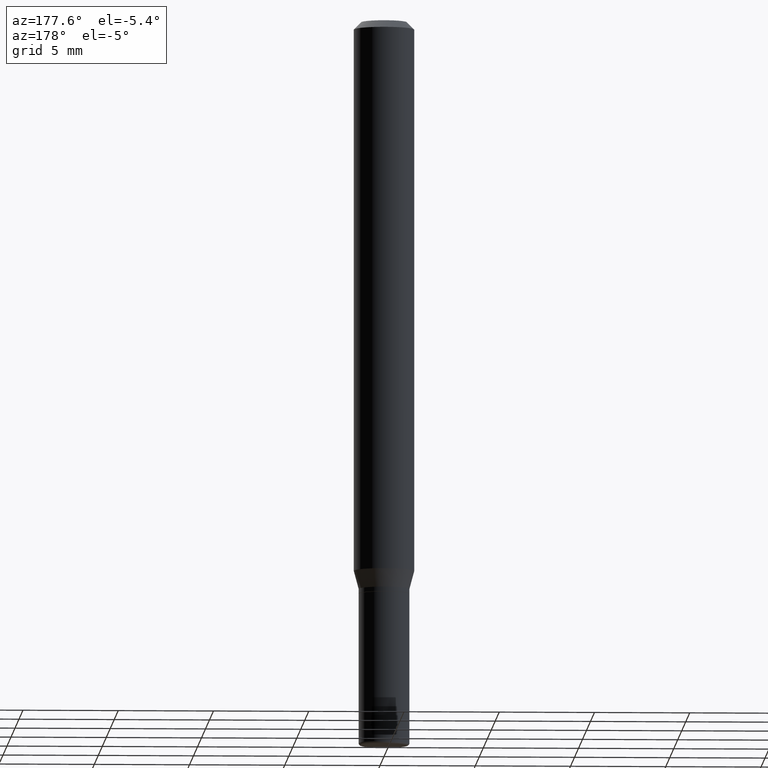
[diagram: clean part render]
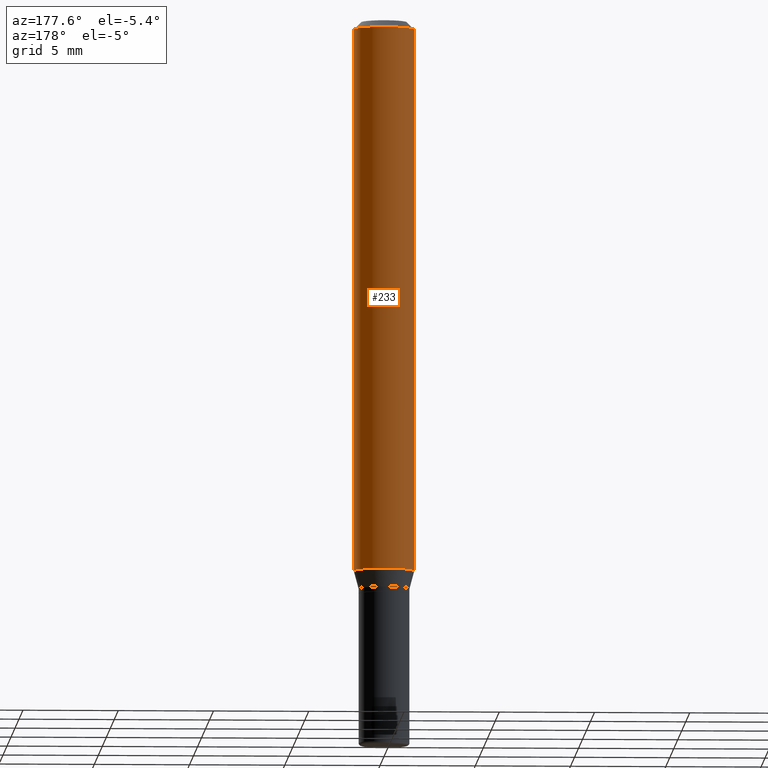
[diagram: same view with one face highlighted and labeled with its STEP entity id]
A machine part, auxiliary view. The second image highlights one B-rep face of the part: STEP entity #233.
In plain terms, the highlighted cylindrical surface (edge-blend (fillet) strip) has radius 1.5875 mm, axis along (-0, 0, 1).
Its self-contained STEP definition (entity closure, byte-faithful):
#3 = VERTEX_POINT ( 'NONE', #241 ) ;
#12 = DIRECTION ( 'NONE',  ( 1.000000000000000000, -6.982962677686266711E-15, 0.000000000000000000 ) ) ;
#13 = ORIENTED_EDGE ( 'NONE', *, *, #512, .T. ) ;
#26 = FACE_OUTER_BOUND ( 'NONE', #471, .T. ) ;
#31 = CIRCLE ( 'NONE', #235, 0.06250000000000000000 ) ;
#36 = CARTESIAN_POINT ( 'NONE',  ( 0.06250000000000000000, -4.364351673553916694E-16, 3.047610484872459871E-30 ) ) ;
#43 = VECTOR ( 'NONE', #222, 39.37007874015748143 ) ;
#49 = VERTEX_POINT ( 'NONE', #369 ) ;
#59 = AXIS2_PLACEMENT_3D ( 'NONE', #481, #126, #244 ) ;
#77 = AXIS2_PLACEMENT_3D ( 'NONE', #441, #407, #12 ) ;
#113 = CARTESIAN_POINT ( 'NONE',  ( -0.06250000000000000000, -3.528097505788223835E-15, -1.137679491924311836 ) ) ;
#125 = VECTOR ( 'NONE', #160, 39.37007874015748143 ) ;
#126 = DIRECTION ( 'NONE',  ( -2.445468806185136597E-29, 3.491481338843145583E-15, 1.000000000000000000 ) ) ;
#160 = DIRECTION ( 'NONE',  ( -2.445468806185136877E-29, 3.491481338843145188E-15, 1.000000000000000000 ) ) ;
#222 = DIRECTION ( 'NONE',  ( -2.445468806185136877E-29, 3.491481338843145188E-15, 1.000000000000000000 ) ) ;
#233 = ADVANCED_FACE ( 'NONE', ( #26 ), #316, .T. ) ;
#235 = AXIS2_PLACEMENT_3D ( 'NONE', #503, #305, #298 ) ;
#241 = CARTESIAN_POINT ( 'NONE',  ( -0.06250000000000000000, -1.568190258010403558E-15, -0.01499999999999970281 ) ) ;
#244 = DIRECTION ( 'NONE',  ( 1.000000000000000000, -6.982962677686266711E-15, 4.876176775795935793E-29 ) ) ;
#245 = CARTESIAN_POINT ( 'NONE',  ( -0.06250000000000000000, 4.440892098500626162E-16, -3.074334431409316114E-30 ) ) ;
#251 = VERTEX_POINT ( 'NONE', #113 ) ;
#265 = CIRCLE ( 'NONE', #77, 0.06250000000000000000 ) ;
#268 = EDGE_CURVE ( 'NONE', #49, #381, #434, .T. ) ;
#298 = DIRECTION ( 'NONE',  ( 1.000000000000000000, -6.982962677686270655E-15, 0.000000000000000000 ) ) ;
#305 = DIRECTION ( 'NONE',  ( -2.445468806185136597E-29, 3.491481338843145583E-15, 1.000000000000000000 ) ) ;
#316 = CYLINDRICAL_SURFACE ( 'NONE', #59, 0.06250000000000000000 ) ;
#347 = CARTESIAN_POINT ( 'NONE',  ( 0.06250000000000000000, -4.888073874380378612E-16, -0.01499999999999970281 ) ) ;
#349 = ORIENTED_EDGE ( 'NONE', *, *, #356, .T. ) ;
#356 = EDGE_CURVE ( 'NONE', #49, #251, #31, .T. ) ;
#369 = CARTESIAN_POINT ( 'NONE',  ( 0.06250000000000000000, -4.408621882993678121E-15, -1.137679491924311836 ) ) ;
#381 = VERTEX_POINT ( 'NONE', #347 ) ;
#407 = DIRECTION ( 'NONE',  ( -2.445468806185136597E-29, 3.491481338843145583E-15, 1.000000000000000000 ) ) ;
#412 = LINE ( 'NONE', #245, #43 ) ;
#434 = LINE ( 'NONE', #36, #125 ) ;
#441 = CARTESIAN_POINT ( 'NONE',  ( 3.668203209277632395E-31, -5.237222008264614861E-17, -0.01499999999999970281 ) ) ;
#471 = EDGE_LOOP ( 'NONE', ( #349, #13, #518, #517 ) ) ;
#472 = EDGE_CURVE ( 'NONE', #381, #3, #265, .T. ) ;
#481 = CARTESIAN_POINT ( 'NONE',  ( 0.000000000000000000, 0.000000000000000000, 0.000000000000000000 ) ) ;
#503 = CARTESIAN_POINT ( 'NONE',  ( 2.782159708937459794E-29, -3.972186715638285663E-15, -1.137679491924311836 ) ) ;
#512 = EDGE_CURVE ( 'NONE', #251, #3, #412, .T. ) ;
#517 = ORIENTED_EDGE ( 'NONE', *, *, #268, .F. ) ;
#518 = ORIENTED_EDGE ( 'NONE', *, *, #472, .F. ) ;